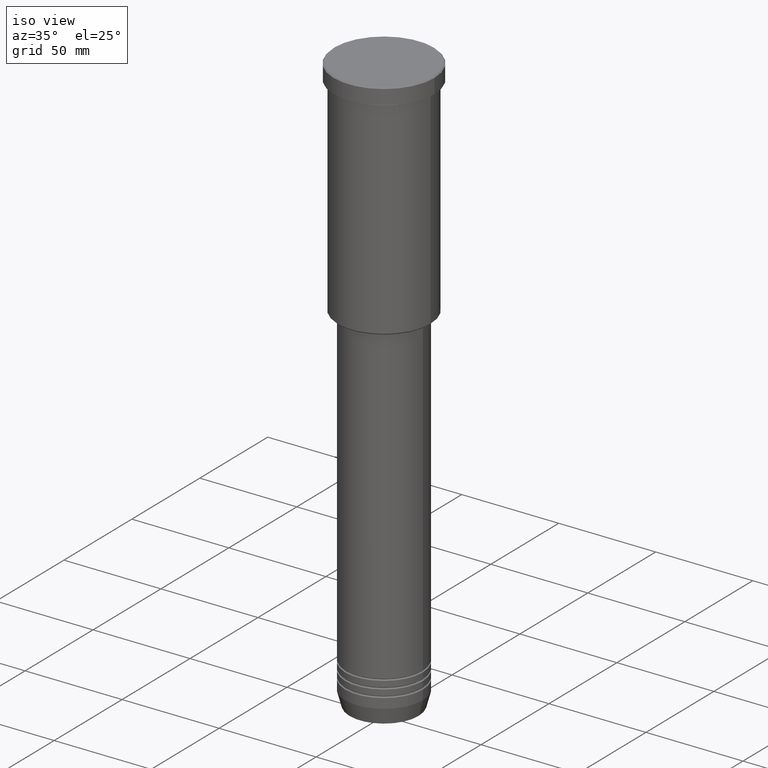
[diagram: clean part render]
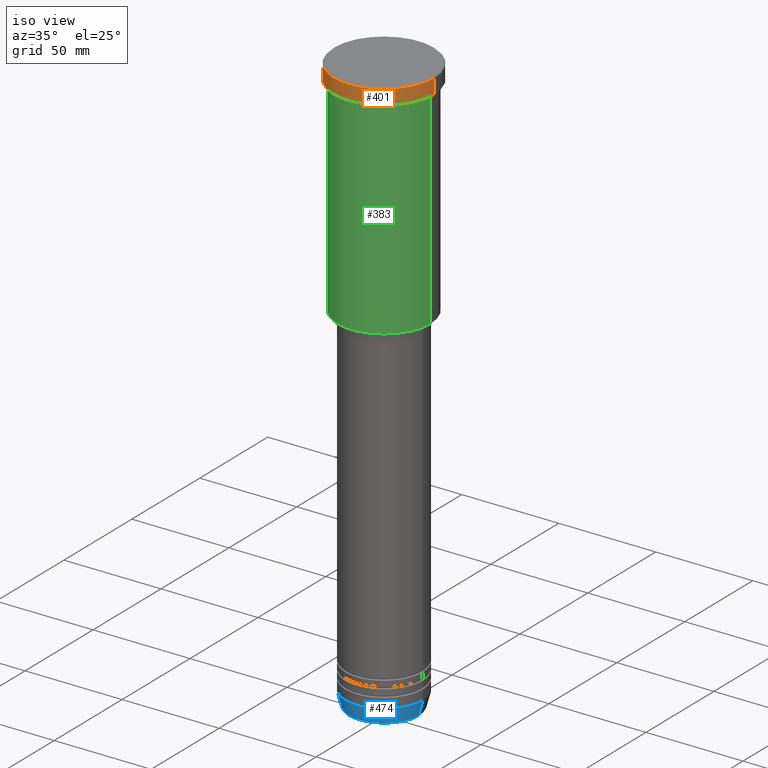
[diagram: same view with three faces highlighted in distinct colors, each labeled with its STEP entity id]
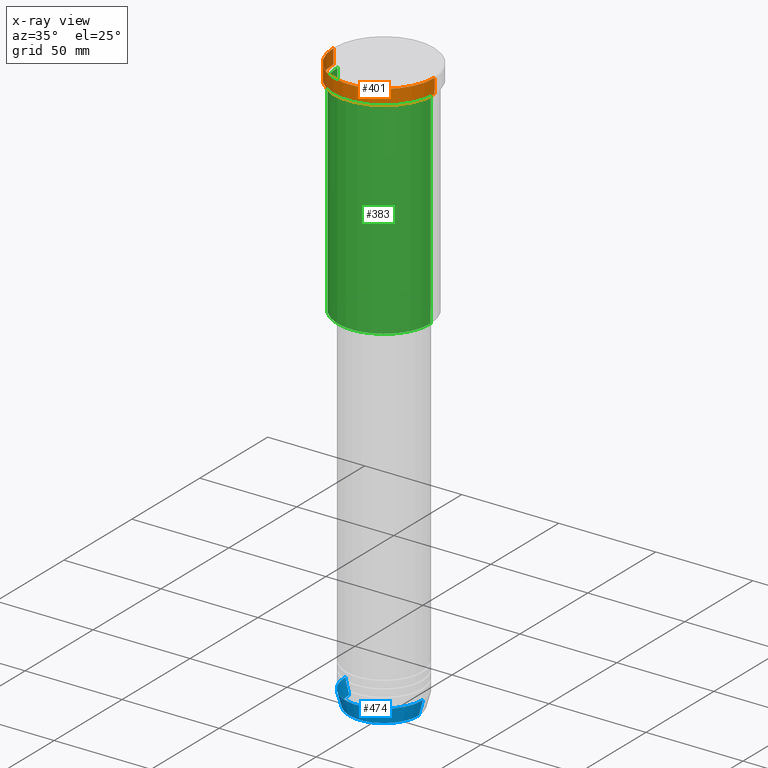
[diagram: x-ray of the same camera — body ghosted, the three highlighted faces saturated]
A machine part, iso view with three faces highlighted in distinct colors.
The next image is the same camera in x-ray (body ghosted, the three faces saturated) — at least one of them is partly hidden behind the body in this view.
Their STEP definitions:

[orange] entity #401 — the highlighted cylindrical surface (partial cylindrical patch) has radius 26 mm, axis along (-0, -0, 1).
#6 = VERTEX_POINT ( 'NONE', #905 ) ;
#28 = EDGE_LOOP ( 'NONE', ( #1075, #492, #664, #126 ) ) ;
#63 = EDGE_CURVE ( 'NONE', #6, #575, #644, .T. ) ;
#126 = ORIENTED_EDGE ( 'NONE', *, *, #660, .T. ) ;
#134 = DIRECTION ( 'NONE',  ( -0.000000000000000000, -0.000000000000000000, 1.000000000000000000 ) ) ;
#192 = DIRECTION ( 'NONE',  ( -0.000000000000000000, -0.000000000000000000, 1.000000000000000000 ) ) ;
#213 = VERTEX_POINT ( 'NONE', #806 ) ;
#218 = DIRECTION ( 'NONE',  ( 1.000000000000000000, 0.000000000000000000, 0.000000000000000000 ) ) ;
#236 = VECTOR ( 'NONE', #192, 1000.000000000000000 ) ;
#271 = CARTESIAN_POINT ( 'NONE',  ( 26.00000000000000000, 0.000000000000000000, 0.000000000000000000 ) ) ;
#401 = ADVANCED_FACE ( 'NONE', ( #985 ), #434, .T. ) ;
#434 = CYLINDRICAL_SURFACE ( 'NONE', #956, 26.00000000000000000 ) ;
#492 = ORIENTED_EDGE ( 'NONE', *, *, #63, .T. ) ;
#499 = CARTESIAN_POINT ( 'NONE',  ( 0.000000000000000000, 0.000000000000000000, -0.4999999999999692468 ) ) ;
#540 = CARTESIAN_POINT ( 'NONE',  ( 0.000000000000000000, 0.000000000000000000, 0.000000000000000000 ) ) ;
#575 = VERTEX_POINT ( 'NONE', #1082 ) ;
#632 = CARTESIAN_POINT ( 'NONE',  ( 0.000000000000000000, 0.000000000000000000, -7.999999999999992895 ) ) ;
#644 = CIRCLE ( 'NONE', #902, 26.00000000000000000 ) ;
#648 = DIRECTION ( 'NONE',  ( 1.000000000000000000, 0.000000000000000000, 0.000000000000000000 ) ) ;
#660 = EDGE_CURVE ( 'NONE', #1134, #213, #733, .T. ) ;
#664 = ORIENTED_EDGE ( 'NONE', *, *, #870, .T. ) ;
#731 = DIRECTION ( 'NONE',  ( -0.000000000000000000, -0.000000000000000000, 1.000000000000000000 ) ) ;
#733 = CIRCLE ( 'NONE', #998, 26.00000000000000000 ) ;
#755 = EDGE_CURVE ( 'NONE', #6, #213, #1130, .T. ) ;
#776 = DIRECTION ( 'NONE',  ( 0.000000000000000000, 0.000000000000000000, -1.000000000000000000 ) ) ;
#806 = CARTESIAN_POINT ( 'NONE',  ( -26.00000000000000000, 3.184081677783118191E-15, -0.4999999999999692468 ) ) ;
#815 = DIRECTION ( 'NONE',  ( 1.000000000000000000, 0.000000000000000000, 0.000000000000000000 ) ) ;
#842 = LINE ( 'NONE', #271, #236 ) ;
#870 = EDGE_CURVE ( 'NONE', #575, #1134, #842, .T. ) ;
#875 = VECTOR ( 'NONE', #960, 1000.000000000000000 ) ;
#902 = AXIS2_PLACEMENT_3D ( 'NONE', #632, #731, #648 ) ;
#905 = CARTESIAN_POINT ( 'NONE',  ( -26.00000000000000000, 3.184081677783118191E-15, -7.999999999999992895 ) ) ;
#927 = CARTESIAN_POINT ( 'NONE',  ( -26.00000000000000000, 3.184081677783118191E-15, 0.000000000000000000 ) ) ;
#956 = AXIS2_PLACEMENT_3D ( 'NONE', #540, #134, #815 ) ;
#960 = DIRECTION ( 'NONE',  ( -0.000000000000000000, -0.000000000000000000, 1.000000000000000000 ) ) ;
#985 = FACE_OUTER_BOUND ( 'NONE', #28, .T. ) ;
#998 = AXIS2_PLACEMENT_3D ( 'NONE', #499, #776, #218 ) ;
#1031 = CARTESIAN_POINT ( 'NONE',  ( 26.00000000000000000, 0.000000000000000000, -0.4999999999999692468 ) ) ;
#1075 = ORIENTED_EDGE ( 'NONE', *, *, #755, .F. ) ;
#1082 = CARTESIAN_POINT ( 'NONE',  ( 26.00000000000000000, 0.000000000000000000, -7.999999999999992895 ) ) ;
#1130 = LINE ( 'NONE', #927, #875 ) ;
#1134 = VERTEX_POINT ( 'NONE', #1031 ) ;

[blue] entity #474 — the highlighted conical surface has half-angle 15 deg.
#2 = CARTESIAN_POINT ( 'NONE',  ( -20.00000000000000355, 2.449293598294706907E-15, -292.0000000000000000 ) ) ;
#27 = DIRECTION ( 'NONE',  ( -0.2588190451025212391, 3.169619151431771721E-17, 0.9659258262890680902 ) ) ;
#37 = VECTOR ( 'NONE', #465, 1000.000000000000114 ) ;
#38 = CIRCLE ( 'NONE', #1073, 20.00000000000000355 ) ;
#95 = EDGE_CURVE ( 'NONE', #1124, #388, #347, .T. ) ;
#141 = CARTESIAN_POINT ( 'NONE',  ( 0.000000000000000000, 0.000000000000000000, -292.0000000000000000 ) ) ;
#167 = LINE ( 'NONE', #1176, #901 ) ;
#276 = EDGE_CURVE ( 'NONE', #973, #388, #38, .T. ) ;
#280 = CARTESIAN_POINT ( 'NONE',  ( 0.000000000000000000, 0.000000000000000000, -299.6294095225512137 ) ) ;
#322 = DIRECTION ( 'NONE',  ( -0.000000000000000000, -0.000000000000000000, 1.000000000000000000 ) ) ;
#329 = DIRECTION ( 'NONE',  ( 1.000000000000000000, 0.000000000000000000, 0.000000000000000000 ) ) ;
#338 = ORIENTED_EDGE ( 'NONE', *, *, #276, .F. ) ;
#347 = LINE ( 'NONE', #654, #37 ) ;
#354 = CIRCLE ( 'NONE', #1115, 17.95570587970608045 ) ;
#376 = ORIENTED_EDGE ( 'NONE', *, *, #95, .T. ) ;
#388 = VERTEX_POINT ( 'NONE', #429 ) ;
#402 = VERTEX_POINT ( 'NONE', #884 ) ;
#428 = ORIENTED_EDGE ( 'NONE', *, *, #729, .F. ) ;
#429 = CARTESIAN_POINT ( 'NONE',  ( 20.00000000000000355, 0.000000000000000000, -292.0000000000000000 ) ) ;
#465 = DIRECTION ( 'NONE',  ( 0.2588190451025212391, 0.000000000000000000, 0.9659258262890680902 ) ) ;
#474 = ADVANCED_FACE ( 'NONE', ( #621 ), #567, .T. ) ;
#489 = AXIS2_PLACEMENT_3D ( 'NONE', #990, #538, #636 ) ;
#538 = DIRECTION ( 'NONE',  ( -0.000000000000000000, -0.000000000000000000, 1.000000000000000000 ) ) ;
#567 = CONICAL_SURFACE ( 'NONE', #489, 20.00000000000000355, 0.2617993877991499629 ) ;
#592 = CARTESIAN_POINT ( 'NONE',  ( 17.95570587970608045, 0.000000000000000000, -299.6294095225512137 ) ) ;
#621 = FACE_OUTER_BOUND ( 'NONE', #778, .T. ) ;
#636 = DIRECTION ( 'NONE',  ( 1.000000000000000000, 0.000000000000000000, 0.000000000000000000 ) ) ;
#654 = CARTESIAN_POINT ( 'NONE',  ( 20.00000000000000355, 0.000000000000000000, -292.0000000000000000 ) ) ;
#729 = EDGE_CURVE ( 'NONE', #402, #973, #167, .T. ) ;
#778 = EDGE_LOOP ( 'NONE', ( #428, #1029, #376, #338 ) ) ;
#823 = DIRECTION ( 'NONE',  ( 1.000000000000000000, 0.000000000000000000, 0.000000000000000000 ) ) ;
#884 = CARTESIAN_POINT ( 'NONE',  ( -17.95570587970608045, 2.324116685748021371E-15, -299.6294095225512137 ) ) ;
#901 = VECTOR ( 'NONE', #27, 1000.000000000000114 ) ;
#928 = EDGE_CURVE ( 'NONE', #402, #1124, #354, .T. ) ;
#973 = VERTEX_POINT ( 'NONE', #2 ) ;
#990 = CARTESIAN_POINT ( 'NONE',  ( 0.000000000000000000, 0.000000000000000000, -292.0000000000000000 ) ) ;
#1029 = ORIENTED_EDGE ( 'NONE', *, *, #928, .T. ) ;
#1073 = AXIS2_PLACEMENT_3D ( 'NONE', #141, #322, #329 ) ;
#1107 = DIRECTION ( 'NONE',  ( -0.000000000000000000, -0.000000000000000000, 1.000000000000000000 ) ) ;
#1115 = AXIS2_PLACEMENT_3D ( 'NONE', #280, #1107, #823 ) ;
#1124 = VERTEX_POINT ( 'NONE', #592 ) ;
#1176 = CARTESIAN_POINT ( 'NONE',  ( -20.00000000000000355, 2.449293598294706907E-15, -292.0000000000000000 ) ) ;

[green] entity #383 — the highlighted cylindrical surface (partial cylindrical patch) has radius 24 mm, axis along (-0, -0, 1).
#36 = CARTESIAN_POINT ( 'NONE',  ( -24.00000000000000000, 2.939152317953647894E-15, 0.000000000000000000 ) ) ;
#64 = CARTESIAN_POINT ( 'NONE',  ( 0.000000000000000000, 0.000000000000000000, 0.000000000000000000 ) ) ;
#74 = AXIS2_PLACEMENT_3D ( 'NONE', #968, #526, #343 ) ;
#94 = CIRCLE ( 'NONE', #242, 24.00000000000000000 ) ;
#111 = CARTESIAN_POINT ( 'NONE',  ( 24.00000000000000000, 0.000000000000000000, -8.999999999999994671 ) ) ;
#150 = CYLINDRICAL_SURFACE ( 'NONE', #1032, 24.00000000000000000 ) ;
#155 = DIRECTION ( 'NONE',  ( -0.000000000000000000, -0.000000000000000000, 1.000000000000000000 ) ) ;
#241 = ORIENTED_EDGE ( 'NONE', *, *, #777, .F. ) ;
#242 = AXIS2_PLACEMENT_3D ( 'NONE', #590, #1119, #846 ) ;
#343 = DIRECTION ( 'NONE',  ( 1.000000000000000000, 0.000000000000000000, 0.000000000000000000 ) ) ;
#345 = VERTEX_POINT ( 'NONE', #608 ) ;
#350 = VERTEX_POINT ( 'NONE', #863 ) ;
#383 = ADVANCED_FACE ( 'NONE', ( #804 ), #150, .T. ) ;
#409 = DIRECTION ( 'NONE',  ( -0.000000000000000000, -0.000000000000000000, 1.000000000000000000 ) ) ;
#421 = EDGE_CURVE ( 'NONE', #1166, #1128, #445, .T. ) ;
#445 = CIRCLE ( 'NONE', #74, 24.00000000000000000 ) ;
#447 = VECTOR ( 'NONE', #757, 1000.000000000000000 ) ;
#493 = EDGE_CURVE ( 'NONE', #345, #1128, #810, .T. ) ;
#498 = LINE ( 'NONE', #36, #951 ) ;
#512 = DIRECTION ( 'NONE',  ( 1.000000000000000000, 0.000000000000000000, 0.000000000000000000 ) ) ;
#526 = DIRECTION ( 'NONE',  ( -0.000000000000000000, -0.000000000000000000, 1.000000000000000000 ) ) ;
#590 = CARTESIAN_POINT ( 'NONE',  ( 0.000000000000000000, 0.000000000000000000, -115.4999999999999432 ) ) ;
#601 = EDGE_CURVE ( 'NONE', #350, #345, #94, .T. ) ;
#608 = CARTESIAN_POINT ( 'NONE',  ( 24.00000000000000000, 0.000000000000000000, -115.4999999999999432 ) ) ;
#643 = CARTESIAN_POINT ( 'NONE',  ( 24.00000000000000000, 0.000000000000000000, 0.000000000000000000 ) ) ;
#702 = ORIENTED_EDGE ( 'NONE', *, *, #421, .F. ) ;
#757 = DIRECTION ( 'NONE',  ( -0.000000000000000000, -0.000000000000000000, 1.000000000000000000 ) ) ;
#777 = EDGE_CURVE ( 'NONE', #350, #1166, #498, .T. ) ;
#804 = FACE_OUTER_BOUND ( 'NONE', #1023, .T. ) ;
#810 = LINE ( 'NONE', #643, #447 ) ;
#846 = DIRECTION ( 'NONE',  ( -1.000000000000000000, 0.000000000000000000, 0.000000000000000000 ) ) ;
#863 = CARTESIAN_POINT ( 'NONE',  ( -24.00000000000000000, 2.939152317953647894E-15, -115.4999999999999432 ) ) ;
#900 = ORIENTED_EDGE ( 'NONE', *, *, #493, .T. ) ;
#951 = VECTOR ( 'NONE', #409, 1000.000000000000000 ) ;
#968 = CARTESIAN_POINT ( 'NONE',  ( 0.000000000000000000, 0.000000000000000000, -8.999999999999994671 ) ) ;
#1023 = EDGE_LOOP ( 'NONE', ( #241, #1087, #900, #702 ) ) ;
#1032 = AXIS2_PLACEMENT_3D ( 'NONE', #64, #155, #512 ) ;
#1035 = CARTESIAN_POINT ( 'NONE',  ( -24.00000000000000000, 2.939152317953647894E-15, -8.999999999999994671 ) ) ;
#1087 = ORIENTED_EDGE ( 'NONE', *, *, #601, .T. ) ;
#1119 = DIRECTION ( 'NONE',  ( -0.000000000000000000, -0.000000000000000000, 1.000000000000000000 ) ) ;
#1128 = VERTEX_POINT ( 'NONE', #111 ) ;
#1166 = VERTEX_POINT ( 'NONE', #1035 ) ;